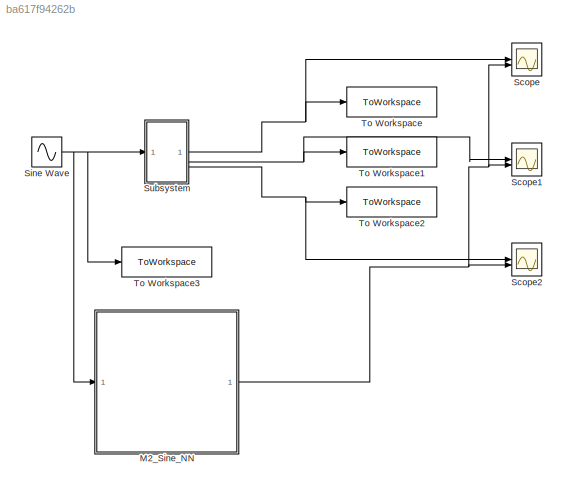
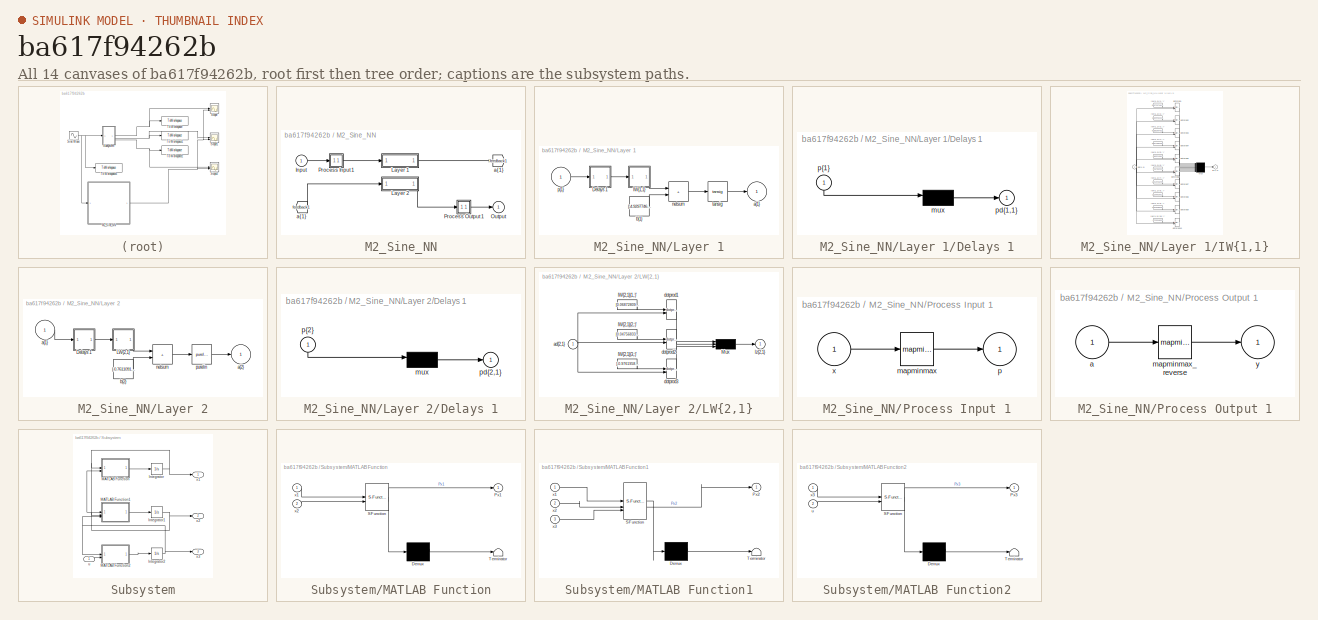
[diagram: thumbnail index - all 14 canvases of the model, root first then tree order]
MODEL slx_ba617f94262b
KIND model
CONFIG AbsTol = auto
CONFIG EnableMultiTasking = off
CONFIG FixedStep = auto
CONFIG MaxStep = auto
CONFIG MinStep = auto
CONFIG RelTol = 1e-3
CONFIG SampleTimeConstraint = Unconstrained
CONFIG SolverName = VariableStepAuto
CONFIG StartTime = 0.0
CONFIG StopTime = 10.0
BLOCK [SubSystem] M2_Sine_NN
BLOCK [From] M2_Sine_NN/ a{1} 
  GotoTag = feedback1
BLOCK [Inport] M2_Sine_NN/Input
  PortDimensions = 1
BLOCK [SubSystem] M2_Sine_NN/Layer 1
BLOCK [SubSystem] M2_Sine_NN/Layer 1/Delays 1
BLOCK [Mux] M2_Sine_NN/Layer 1/Delays 1/mux
  Inputs = 1
BLOCK [Outport] M2_Sine_NN/Layer 1/Delays 1/pd{1,1}
BLOCK [Inport] M2_Sine_NN/Layer 1/Delays 1/p{1}
  NameLocation = left
  PortDimensions = 1
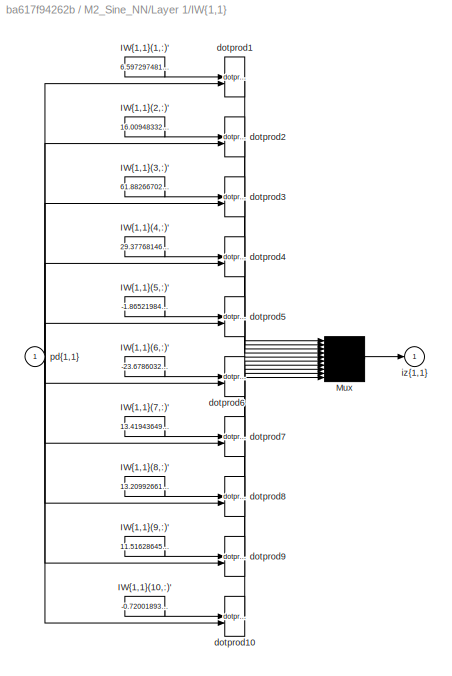
BLOCK [SubSystem] M2_Sine_NN/Layer 1/IW{1,1}
BLOCK [Constant] M2_Sine_NN/Layer 1/IW{1,1}/IW{1,1}(1,:)'
  Value = 6.59729748131243098896447918377816677093505859375
BLOCK [Constant] M2_Sine_NN/Layer 1/IW{1,1}/IW{1,1}(10,:)'
  Value = -0.72001893471981881500454392153187654912471771240234375
BLOCK [Constant] M2_Sine_NN/Layer 1/IW{1,1}/IW{1,1}(2,:)'
  Value = 16.009483321851750048381290980614721775054931640625
BLOCK [Constant] M2_Sine_NN/Layer 1/IW{1,1}/IW{1,1}(3,:)'
  Value = 61.8826670229199322648128145374357700347900390625
BLOCK [Constant] M2_Sine_NN/Layer 1/IW{1,1}/IW{1,1}(4,:)'
  Value = 29.37768146977675343123337370343506336212158203125
BLOCK [Constant] M2_Sine_NN/Layer 1/IW{1,1}/IW{1,1}(5,:)'
  Value = -1.8652198410995446398175090507720597088336944580078125
BLOCK [Constant] M2_Sine_NN/Layer 1/IW{1,1}/IW{1,1}(6,:)'
  Value = -23.678603244546696515726580400951206684112548828125
BLOCK [Constant] M2_Sine_NN/Layer 1/IW{1,1}/IW{1,1}(7,:)'
  Value = 13.41943649848122532830529962666332721710205078125
BLOCK [Constant] M2_Sine_NN/Layer 1/IW{1,1}/IW{1,1}(8,:)'
  Value = 13.20992661538654289188343682326376438140869140625
BLOCK [Constant] M2_Sine_NN/Layer 1/IW{1,1}/IW{1,1}(9,:)'
  Value = 11.5162864546071812554828284191899001598358154296875
BLOCK [Mux] M2_Sine_NN/Layer 1/IW{1,1}/Mux
  Inputs = 10
BLOCK [Reference] M2_Sine_NN/Layer 1/IW{1,1}/dotprod1  REF=neural/Weight Functions/dotprod
  SourceBlock = neural/Weight Functions/dotprod
  SourceType = DOTPROD
BLOCK [Reference] M2_Sine_NN/Layer 1/IW{1,1}/dotprod10  REF=neural/Weight Functions/dotprod
  SourceBlock = neural/Weight Functions/dotprod
  SourceType = DOTPROD
BLOCK [Reference] M2_Sine_NN/Layer 1/IW{1,1}/dotprod2  REF=neural/Weight Functions/dotprod
  SourceBlock = neural/Weight Functions/dotprod
  SourceType = DOTPROD
BLOCK [Reference] M2_Sine_NN/Layer 1/IW{1,1}/dotprod3  REF=neural/Weight Functions/dotprod
  SourceBlock = neural/Weight Functions/dotprod
  SourceType = DOTPROD
BLOCK [Reference] M2_Sine_NN/Layer 1/IW{1,1}/dotprod4  REF=neural/Weight Functions/dotprod
  SourceBlock = neural/Weight Functions/dotprod
  SourceType = DOTPROD
BLOCK [Reference] M2_Sine_NN/Layer 1/IW{1,1}/dotprod5  REF=neural/Weight Functions/dotprod
  SourceBlock = neural/Weight Functions/dotprod
  SourceType = DOTPROD
BLOCK [Reference] M2_Sine_NN/Layer 1/IW{1,1}/dotprod6  REF=neural/Weight Functions/dotprod
  SourceBlock = neural/Weight Functions/dotprod
  SourceType = DOTPROD
BLOCK [Reference] M2_Sine_NN/Layer 1/IW{1,1}/dotprod7  REF=neural/Weight Functions/dotprod
  SourceBlock = neural/Weight Functions/dotprod
  SourceType = DOTPROD
BLOCK [Reference] M2_Sine_NN/Layer 1/IW{1,1}/dotprod8  REF=neural/Weight Functions/dotprod
  SourceBlock = neural/Weight Functions/dotprod
  SourceType = DOTPROD
BLOCK [Reference] M2_Sine_NN/Layer 1/IW{1,1}/dotprod9  REF=neural/Weight Functions/dotprod
  SourceBlock = neural/Weight Functions/dotprod
  SourceType = DOTPROD
BLOCK [Outport] M2_Sine_NN/Layer 1/IW{1,1}/iz{1,1}
BLOCK [Inport] M2_Sine_NN/Layer 1/IW{1,1}/pd{1,1}
  PortDimensions = 1
BLOCK [Outport] M2_Sine_NN/Layer 1/a{1}
  InitialOutput = [0;0;0;0;0;0;0;0;0;0]
BLOCK [Constant] M2_Sine_NN/Layer 1/b{1}
  Value = [-4.92977468688967679355528161977417767047882080078125;-12.3835468727127331334258997230790555477142333984375;-35.67223566770690013072453439235687255859375;-9.6128932458157425600120404851622879505157470703125;0.863013359167428273366340363281778991222381591796875;-1.68068421856249106127734194160439074039459228515625;3.27749416816199978796930736280046403408050537109375;8.74750059694273573995815240778...<+123ch>
BLOCK [Sum] M2_Sine_NN/Layer 1/netsum
  IconShape = rectangular
  InputSameDT = on
  Inputs = 2
  OutDataTypeStr = Inherit: Same as first input
  SaturateOnIntegerOverflow = on
BLOCK [Inport] M2_Sine_NN/Layer 1/p{1}
  PortDimensions = 1
BLOCK [Reference] M2_Sine_NN/Layer 1/tansig  REF=neural/Transfer Functions/tansig
  SourceBlock = neural/Transfer Functions/tansig
  SourceType = TANSIG
BLOCK [SubSystem] M2_Sine_NN/Layer 2
BLOCK [SubSystem] M2_Sine_NN/Layer 2/Delays 1
BLOCK [Mux] M2_Sine_NN/Layer 2/Delays 1/mux
  Inputs = 1
BLOCK [Outport] M2_Sine_NN/Layer 2/Delays 1/pd{2,1}
BLOCK [Inport] M2_Sine_NN/Layer 2/Delays 1/p{2}
  NameLocation = left
  PortDimensions = 10
BLOCK [SubSystem] M2_Sine_NN/Layer 2/LW{2,1}
BLOCK [Constant] M2_Sine_NN/Layer 2/LW{2,1}/IW{2,1}(1,:)'
  Value = [0.06872809573943160221798365228096372447907924652099609375;-0.387527411102867092029811146858264692127704620361328125;-0.32007299476179029706912615438341163098812103271484375;0.149402153647903934707841244744486175477504730224609375;0.4225775628974515196745187495253048837184906005859375;-0.796807691414729735157607137807644903659820556640625;-0.71233630632452837883050733580603264272212982177734375;0...<+160ch>
BLOCK [Constant] M2_Sine_NN/Layer 2/LW{2,1}/IW{2,1}(2,:)'
  Value = [0.04756833608579021099860284493843209929764270782470703125;-0.0233637487199436499896165742029552347958087921142578125;-0.000657164558327337500198694897335371933877468109130859375;0.08442714116124015732989249727324931882321834564208984375;0.6826640588020700395333051346824504435062408447265625;0.03296653470366507632238750602482468821108341217041015625;-0.01841802595290434330088658043678151443600654...<+183ch>
BLOCK [Constant] M2_Sine_NN/Layer 2/LW{2,1}/IW{2,1}(3,:)'
  Value = [-0.9761958609975545098080829120590351521968841552734375;0.58856908136779473306177123959059827029705047607421875;-0.6687025410004292513832524491590447723865509033203125;0.308158196953564889053467368285055272281169891357421875;-0.0989168029950198424149476750244502909481525421142578125;0.82667472300330813173019350870163179934024810791015625;0.07668487052015382499092766011017374694347381591796875;-0....<+169ch>
BLOCK [Mux] M2_Sine_NN/Layer 2/LW{2,1}/Mux
  Inputs = 3
BLOCK [Inport] M2_Sine_NN/Layer 2/LW{2,1}/ad{2,1}
  PortDimensions = 10
BLOCK [Reference] M2_Sine_NN/Layer 2/LW{2,1}/dotprod1  REF=neural/Weight Functions/dotprod
  SourceBlock = neural/Weight Functions/dotprod
  SourceType = DOTPROD
BLOCK [Reference] M2_Sine_NN/Layer 2/LW{2,1}/dotprod2  REF=neural/Weight Functions/dotprod
  SourceBlock = neural/Weight Functions/dotprod
  SourceType = DOTPROD
BLOCK [Reference] M2_Sine_NN/Layer 2/LW{2,1}/dotprod3  REF=neural/Weight Functions/dotprod
  SourceBlock = neural/Weight Functions/dotprod
  SourceType = DOTPROD
BLOCK [Outport] M2_Sine_NN/Layer 2/LW{2,1}/lz{2,1}
BLOCK [Inport] M2_Sine_NN/Layer 2/a{1} 
  PortDimensions = 10
BLOCK [Outport] M2_Sine_NN/Layer 2/a{2}
  InitialOutput = [0;0;0]
BLOCK [Constant] M2_Sine_NN/Layer 2/b{2}
  Value = [-0.76110911133421199625814779210486449301242828369140625;0.9379018661925802025081111423787660896778106689453125;-0.4802591942986478290578133965027518570423126220703125]
BLOCK [Sum] M2_Sine_NN/Layer 2/netsum
  IconShape = rectangular
  InputSameDT = on
  Inputs = 2
  OutDataTypeStr = Inherit: Same as first input
  SaturateOnIntegerOverflow = on
BLOCK [Reference] M2_Sine_NN/Layer 2/purelin  REF=neural/Transfer Functions/purelin
  SourceBlock = neural/Transfer Functions/purelin
  SourceType = PURELIN
BLOCK [Outport] M2_Sine_NN/Output
  InitialOutput = [0;0;0]
BLOCK [SubSystem] M2_Sine_NN/Process Input 1
BLOCK [Reference] M2_Sine_NN/Process Input 1/mapminmax  REF=neural/Processing Functions/mapminmax
  SourceBlock = neural/Processing Functions/mapminmax
  SourceType = MAPMINMAX Preprocess
BLOCK [Outport] M2_Sine_NN/Process Input 1/p
  PortDimensions = 1
BLOCK [Inport] M2_Sine_NN/Process Input 1/x
  PortDimensions = 1
BLOCK [SubSystem] M2_Sine_NN/Process Output 1
BLOCK [Inport] M2_Sine_NN/Process Output 1/a
  PortDimensions = 3
BLOCK [Reference] M2_Sine_NN/Process Output 1/mapminmax_reverse  REF=neural/Processing Functions/mapminmax_reverse
  SourceBlock = neural/Processing Functions/mapminmax_reverse
  SourceType = MAPMINMAX Reverse Process
BLOCK [Outport] M2_Sine_NN/Process Output 1/y
  PortDimensions = 3
BLOCK [Goto] M2_Sine_NN/a{1}
  GotoTag = feedback1
BLOCK [Scope] Scope
  Floating = off
  NumInputPorts = 2
  ScopeSpecificationString = Simulink.scopes.TimeScopeBlockCfg('CurrentConfiguration', extmgr.ConfigurationSet(extmgr.Configuration('Core','General UI',true),extmgr.Configuration('Core','Source UI',true),extmgr.Configuration('Sources','WiredSimulink',true,'DataLoggingVariableName','ScopeData1'),extmgr.Configuration('Visuals','Time Domain',true,'SerializedDisplays',{struct('MinYLimReal','-3232428.4855','MaxYLimReal','4855700.4...<+1429ch>
BLOCK [Scope] Scope1
  Floating = off
  NumInputPorts = 2
  ScopeSpecificationString = Simulink.scopes.TimeScopeBlockCfg('CurrentConfiguration', extmgr.ConfigurationSet(extmgr.Configuration('Core','General UI',true),extmgr.Configuration('Core','Source UI',true),extmgr.Configuration('Sources','WiredSimulink',true,'DataLoggingVariableName','ScopeData2'),extmgr.Configuration('Visuals','Time Domain',true,'SerializedDisplays',{struct('MinYLimReal','-5924952.0762','MaxYLimReal','6221544.8...<+1429ch>
BLOCK [Scope] Scope2
  Floating = off
  NumInputPorts = 2
  ScopeSpecificationString = Simulink.scopes.TimeScopeBlockCfg('CurrentConfiguration', extmgr.ConfigurationSet(extmgr.Configuration('Core','General UI',true),extmgr.Configuration('Core','Source UI',true),extmgr.Configuration('Sources','WiredSimulink',true),extmgr.Configuration('Visuals','Time Domain',true,'SerializedDisplays',{struct('MinYLimReal','-3232428.4855','MaxYLimReal','4855700.42755','YLabelReal','','MinYLimMag','   ...<+1483ch>
BLOCK [Sin] Sine Wave
  SampleTime = 0
BLOCK [SubSystem] Subsystem
BLOCK [Integrator] Subsystem/Integrator
BLOCK [Integrator] Subsystem/Integrator1
BLOCK [Integrator] Subsystem/Integrator2
BLOCK [SubSystem] Subsystem/MATLAB Function
  ErrorFcn = Stateflow.Translate.translate
  LibrarySourceBlock = simulink/User-Defined\nFunctions/MATLAB Function
  PermitHierarchicalResolution = ExplicitOnly
  SFBlockType = MATLAB Function
  TreatAsAtomicUnit = on
BLOCK [Demux] Subsystem/MATLAB Function/ Demux 
  Outputs = 1
BLOCK [S-Function] Subsystem/MATLAB Function/ SFunction 
  EnableBusSupport = on
  FunctionName = sf_sfun
  PortCounts = [2 2]
  SFcnIsStateOwnerBlock = off
  SFunctionDeploymentMode = off
  Tag = Stateflow S-Function 2
BLOCK [Terminator] Subsystem/MATLAB Function/ Terminator 
BLOCK [Outport] Subsystem/MATLAB Function/Px1
BLOCK [Inport] Subsystem/MATLAB Function/x1
BLOCK [Inport] Subsystem/MATLAB Function/x2
  Port = 2
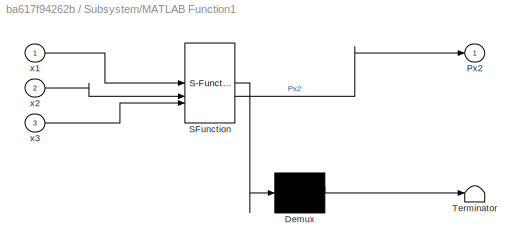
BLOCK [SubSystem] Subsystem/MATLAB Function1
  ErrorFcn = Stateflow.Translate.translate
  LibrarySourceBlock = simulink/User-Defined\nFunctions/MATLAB Function
  PermitHierarchicalResolution = ExplicitOnly
  SFBlockType = MATLAB Function
  TreatAsAtomicUnit = on
BLOCK [Demux] Subsystem/MATLAB Function1/ Demux 
  Outputs = 1
BLOCK [S-Function] Subsystem/MATLAB Function1/ SFunction 
  EnableBusSupport = on
  FunctionName = sf_sfun
  PortCounts = [3 2]
  SFcnIsStateOwnerBlock = off
  SFunctionDeploymentMode = off
  Tag = Stateflow S-Function 1
BLOCK [Terminator] Subsystem/MATLAB Function1/ Terminator 
BLOCK [Outport] Subsystem/MATLAB Function1/Px2
BLOCK [Inport] Subsystem/MATLAB Function1/x1
BLOCK [Inport] Subsystem/MATLAB Function1/x2
  Port = 2
BLOCK [Inport] Subsystem/MATLAB Function1/x3
  Port = 3
BLOCK [SubSystem] Subsystem/MATLAB Function2
  ErrorFcn = Stateflow.Translate.translate
  LibrarySourceBlock = simulink/User-Defined\nFunctions/MATLAB Function
  PermitHierarchicalResolution = ExplicitOnly
  SFBlockType = MATLAB Function
  TreatAsAtomicUnit = on
BLOCK [Demux] Subsystem/MATLAB Function2/ Demux 
  Outputs = 1
BLOCK [S-Function] Subsystem/MATLAB Function2/ SFunction 
  EnableBusSupport = on
  FunctionName = sf_sfun
  PortCounts = [2 2]
  SFcnIsStateOwnerBlock = off
  SFunctionDeploymentMode = off
  Tag = Stateflow S-Function 3
BLOCK [Terminator] Subsystem/MATLAB Function2/ Terminator 
BLOCK [Outport] Subsystem/MATLAB Function2/Px3
BLOCK [Inport] Subsystem/MATLAB Function2/u
  Port = 2
BLOCK [Inport] Subsystem/MATLAB Function2/x3
BLOCK [Inport] Subsystem/u
BLOCK [Outport] Subsystem/x1
BLOCK [Outport] Subsystem/x2
  Port = 2
BLOCK [Outport] Subsystem/x3
  Port = 3
BLOCK [ToWorkspace] To Workspace
  FixptAsFi = on
  MaxDataPoints = inf
  SampleTime = -1
  SaveFormat = Structure With Time
  VariableName = x1
BLOCK [ToWorkspace] To Workspace1
  FixptAsFi = on
  MaxDataPoints = inf
  SampleTime = -1
  SaveFormat = Structure With Time
  VariableName = x2
BLOCK [ToWorkspace] To Workspace2
  FixptAsFi = on
  MaxDataPoints = inf
  SampleTime = -1
  SaveFormat = Structure With Time
  VariableName = x3
BLOCK [ToWorkspace] To Workspace3
  FixptAsFi = on
  MaxDataPoints = inf
  SampleTime = -1
  SaveFormat = Structure With Time
  VariableName = u
LINE M2_Sine_NN/ a{1} :1 -> M2_Sine_NN/Layer 2:1
LINE M2_Sine_NN/Input:1 -> M2_Sine_NN/Process Input 1:1
LINE M2_Sine_NN/Layer 1/Delays 1/mux:1 -> M2_Sine_NN/Layer 1/Delays 1/pd{1,1}:1
LINE M2_Sine_NN/Layer 1/Delays 1/p{1}:1 -> M2_Sine_NN/Layer 1/Delays 1/mux:1
LINE M2_Sine_NN/Layer 1/Delays 1:1 -> M2_Sine_NN/Layer 1/IW{1,1}:1
LINE M2_Sine_NN/Layer 1/IW{1,1}/IW{1,1}(1,:)':1 -> M2_Sine_NN/Layer 1/IW{1,1}/dotprod1:1
LINE M2_Sine_NN/Layer 1/IW{1,1}/IW{1,1}(10,:)':1 -> M2_Sine_NN/Layer 1/IW{1,1}/dotprod10:1
LINE M2_Sine_NN/Layer 1/IW{1,1}/IW{1,1}(2,:)':1 -> M2_Sine_NN/Layer 1/IW{1,1}/dotprod2:1
LINE M2_Sine_NN/Layer 1/IW{1,1}/IW{1,1}(3,:)':1 -> M2_Sine_NN/Layer 1/IW{1,1}/dotprod3:1
LINE M2_Sine_NN/Layer 1/IW{1,1}/IW{1,1}(4,:)':1 -> M2_Sine_NN/Layer 1/IW{1,1}/dotprod4:1
LINE M2_Sine_NN/Layer 1/IW{1,1}/IW{1,1}(5,:)':1 -> M2_Sine_NN/Layer 1/IW{1,1}/dotprod5:1
LINE M2_Sine_NN/Layer 1/IW{1,1}/IW{1,1}(6,:)':1 -> M2_Sine_NN/Layer 1/IW{1,1}/dotprod6:1
LINE M2_Sine_NN/Layer 1/IW{1,1}/IW{1,1}(7,:)':1 -> M2_Sine_NN/Layer 1/IW{1,1}/dotprod7:1
LINE M2_Sine_NN/Layer 1/IW{1,1}/IW{1,1}(8,:)':1 -> M2_Sine_NN/Layer 1/IW{1,1}/dotprod8:1
LINE M2_Sine_NN/Layer 1/IW{1,1}/IW{1,1}(9,:)':1 -> M2_Sine_NN/Layer 1/IW{1,1}/dotprod9:1
LINE M2_Sine_NN/Layer 1/IW{1,1}/Mux:1 -> M2_Sine_NN/Layer 1/IW{1,1}/iz{1,1}:1
LINE M2_Sine_NN/Layer 1/IW{1,1}/dotprod10:1 -> M2_Sine_NN/Layer 1/IW{1,1}/Mux:10
LINE M2_Sine_NN/Layer 1/IW{1,1}/dotprod1:1 -> M2_Sine_NN/Layer 1/IW{1,1}/Mux:1
LINE M2_Sine_NN/Layer 1/IW{1,1}/dotprod2:1 -> M2_Sine_NN/Layer 1/IW{1,1}/Mux:2
LINE M2_Sine_NN/Layer 1/IW{1,1}/dotprod3:1 -> M2_Sine_NN/Layer 1/IW{1,1}/Mux:3
LINE M2_Sine_NN/Layer 1/IW{1,1}/dotprod4:1 -> M2_Sine_NN/Layer 1/IW{1,1}/Mux:4
LINE M2_Sine_NN/Layer 1/IW{1,1}/dotprod5:1 -> M2_Sine_NN/Layer 1/IW{1,1}/Mux:5
LINE M2_Sine_NN/Layer 1/IW{1,1}/dotprod6:1 -> M2_Sine_NN/Layer 1/IW{1,1}/Mux:6
LINE M2_Sine_NN/Layer 1/IW{1,1}/dotprod7:1 -> M2_Sine_NN/Layer 1/IW{1,1}/Mux:7
LINE M2_Sine_NN/Layer 1/IW{1,1}/dotprod8:1 -> M2_Sine_NN/Layer 1/IW{1,1}/Mux:8
LINE M2_Sine_NN/Layer 1/IW{1,1}/dotprod9:1 -> M2_Sine_NN/Layer 1/IW{1,1}/Mux:9
NET M2_Sine_NN/Layer 1/IW{1,1}/pd{1,1}:1 -> M2_Sine_NN/Layer 1/IW{1,1}/dotprod10:2, M2_Sine_NN/Layer 1/IW{1,1}/dotprod1:2, M2_Sine_NN/Layer 1/IW{1,1}/dotprod2:2, M2_Sine_NN/Layer 1/IW{1,1}/dotprod3:2, M2_Sine_NN/Layer 1/IW{1,1}/dotprod4:2, M2_Sine_NN/Layer 1/IW{1,1}/dotprod5:2, M2_Sine_NN/Layer 1/IW{1,1}/dotprod6:2, M2_Sine_NN/Layer 1/IW{1,1}/dotprod7:2, M2_Sine_NN/Layer 1/IW{1,1}/dotprod8:2, M2_Sine_NN/Layer 1/IW{1,1}/dotprod9:2
LINE M2_Sine_NN/Layer 1/IW{1,1}:1 -> M2_Sine_NN/Layer 1/netsum:1
LINE M2_Sine_NN/Layer 1/b{1}:1 -> M2_Sine_NN/Layer 1/netsum:2
LINE M2_Sine_NN/Layer 1/netsum:1 -> M2_Sine_NN/Layer 1/tansig:1
LINE M2_Sine_NN/Layer 1/p{1}:1 -> M2_Sine_NN/Layer 1/Delays 1:1
LINE M2_Sine_NN/Layer 1/tansig:1 -> M2_Sine_NN/Layer 1/a{1}:1
LINE M2_Sine_NN/Layer 1:1 -> M2_Sine_NN/a{1}:1
LINE M2_Sine_NN/Layer 2/Delays 1/mux:1 -> M2_Sine_NN/Layer 2/Delays 1/pd{2,1}:1
LINE M2_Sine_NN/Layer 2/Delays 1/p{2}:1 -> M2_Sine_NN/Layer 2/Delays 1/mux:1
LINE M2_Sine_NN/Layer 2/Delays 1:1 -> M2_Sine_NN/Layer 2/LW{2,1}:1
LINE M2_Sine_NN/Layer 2/LW{2,1}/IW{2,1}(1,:)':1 -> M2_Sine_NN/Layer 2/LW{2,1}/dotprod1:1
LINE M2_Sine_NN/Layer 2/LW{2,1}/IW{2,1}(2,:)':1 -> M2_Sine_NN/Layer 2/LW{2,1}/dotprod2:1
LINE M2_Sine_NN/Layer 2/LW{2,1}/IW{2,1}(3,:)':1 -> M2_Sine_NN/Layer 2/LW{2,1}/dotprod3:1
LINE M2_Sine_NN/Layer 2/LW{2,1}/Mux:1 -> M2_Sine_NN/Layer 2/LW{2,1}/lz{2,1}:1
NET M2_Sine_NN/Layer 2/LW{2,1}/ad{2,1}:1 -> M2_Sine_NN/Layer 2/LW{2,1}/dotprod1:2, M2_Sine_NN/Layer 2/LW{2,1}/dotprod2:2, M2_Sine_NN/Layer 2/LW{2,1}/dotprod3:2
LINE M2_Sine_NN/Layer 2/LW{2,1}/dotprod1:1 -> M2_Sine_NN/Layer 2/LW{2,1}/Mux:1
LINE M2_Sine_NN/Layer 2/LW{2,1}/dotprod2:1 -> M2_Sine_NN/Layer 2/LW{2,1}/Mux:2
LINE M2_Sine_NN/Layer 2/LW{2,1}/dotprod3:1 -> M2_Sine_NN/Layer 2/LW{2,1}/Mux:3
LINE M2_Sine_NN/Layer 2/LW{2,1}:1 -> M2_Sine_NN/Layer 2/netsum:1
LINE M2_Sine_NN/Layer 2/a{1} :1 -> M2_Sine_NN/Layer 2/Delays 1:1
LINE M2_Sine_NN/Layer 2/b{2}:1 -> M2_Sine_NN/Layer 2/netsum:2
LINE M2_Sine_NN/Layer 2/netsum:1 -> M2_Sine_NN/Layer 2/purelin:1
LINE M2_Sine_NN/Layer 2/purelin:1 -> M2_Sine_NN/Layer 2/a{2}:1
LINE M2_Sine_NN/Layer 2:1 -> M2_Sine_NN/Process Output 1:1
LINE M2_Sine_NN/Process Input 1/mapminmax:1 -> M2_Sine_NN/Process Input 1/p:1
LINE M2_Sine_NN/Process Input 1/x:1 -> M2_Sine_NN/Process Input 1/mapminmax:1
LINE M2_Sine_NN/Process Input 1:1 -> M2_Sine_NN/Layer 1:1
LINE M2_Sine_NN/Process Output 1/a:1 -> M2_Sine_NN/Process Output 1/mapminmax_reverse:1
LINE M2_Sine_NN/Process Output 1/mapminmax_reverse:1 -> M2_Sine_NN/Process Output 1/y:1
LINE M2_Sine_NN/Process Output 1:1 -> M2_Sine_NN/Output:1
NET M2_Sine_NN:1 -> Scope1:2, Scope2:2, Scope:2
NET Sine Wave:1 -> M2_Sine_NN:1, Subsystem:1, To Workspace3:1
NET Subsystem/Integrator1:1 -> Subsystem/MATLAB Function1:2, Subsystem/MATLAB Function:2, Subsystem/x2:1
NET Subsystem/Integrator2:1 -> Subsystem/MATLAB Function1:3, Subsystem/MATLAB Function2:1, Subsystem/x3:1
NET Subsystem/Integrator:1 -> Subsystem/MATLAB Function1:1, Subsystem/MATLAB Function:1, Subsystem/x1:1
LINE Subsystem/MATLAB Function1:1 -> Subsystem/Integrator1:1
LINE Subsystem/MATLAB Function2:1 -> Subsystem/Integrator2:1
LINE Subsystem/MATLAB Function:1 -> Subsystem/Integrator:1
LINE Subsystem/u:1 -> Subsystem/MATLAB Function2:2
NET Subsystem:1 -> Scope:1, To Workspace:1
NET Subsystem:2 -> Scope1:1, To Workspace1:1
NET Subsystem:3 -> Scope2:1, To Workspace2:1
note: NET lines group one-source signal fan-out (src -> all destinations, sorted); 1:1 wires keep LINE
CHART Subsystem/MATLAB Function states=1 transitions=1
  STATE_LABEL 'eML_blk_kernel()'
  STATE_LABEL 'SCRIPT:\nfunction Px1 = fcn(x1,x2)\njt = 0.03;\nBm = 1.1*10^(-3);\nqm = 7.96*10^(-7);\ncf = 0.104;\nps = 10^(7);\n\nPx1 = (1/jt)*(-Bm*x1+qm*x2-qm*cf*ps);\n'
CHART Subsystem/MATLAB Function2 states=1 transitions=1
  STATE_LABEL 'eML_blk_kernel()'
  STATE_LABEL 'SCRIPT:\nfunction Px3 = fcn(x3,u)\n\nTr = 0.1;\nkr = 1.4*10^(-4);\nkq = 1.66;\n\n\nPx3 = (1/Tr)*(-x3+(kr/kq)*u);\n'
CHART Subsystem/MATLAB Function1 states=1 transitions=1
  STATE_LABEL 'eML_blk_kernel()'
  STATE_LABEL 'SCRIPT:\nfunction Px2 = fcn(x1,x2,x3)\n\nqm = 7.96*10^(-7);\nBe = 1.391*10^(9);\nvo = 1.2*10^(-4);\ncim = 1.69*10^(-11);\ncd = 0.61;\nw = 8*pi*10^(-3);\nP = 850;\nps = 10^(7);\n\n\nPx2 = ((2*Be)/vo)*(-qm*x1-cim*x2-cd*w*x3*sqrt((1/P)*(ps-x2)));\n'
CHART  states=0 transitions=0
CHART  states=0 transitions=0
CHART  states=0 transitions=0
